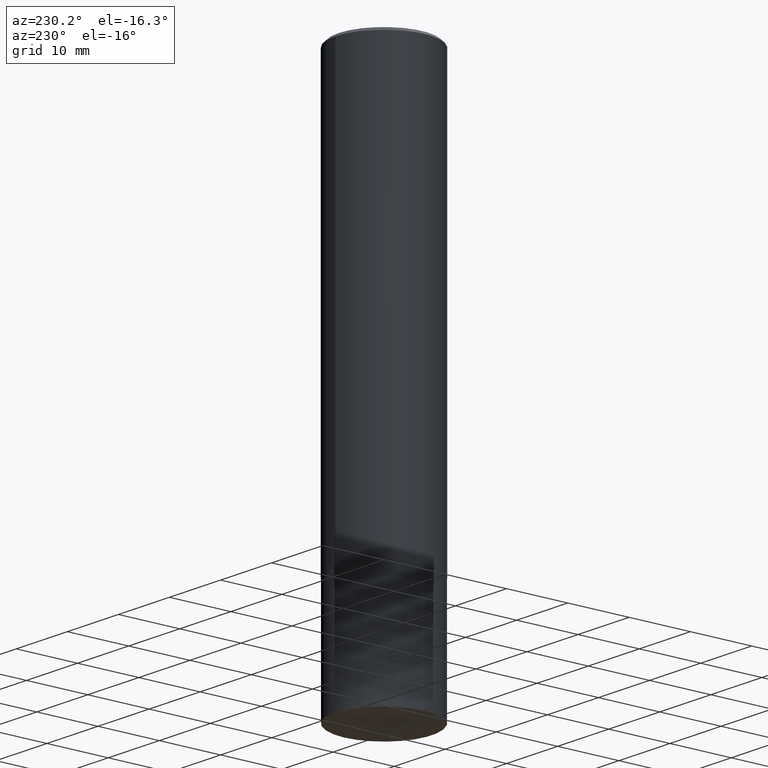
[diagram: clean part render]
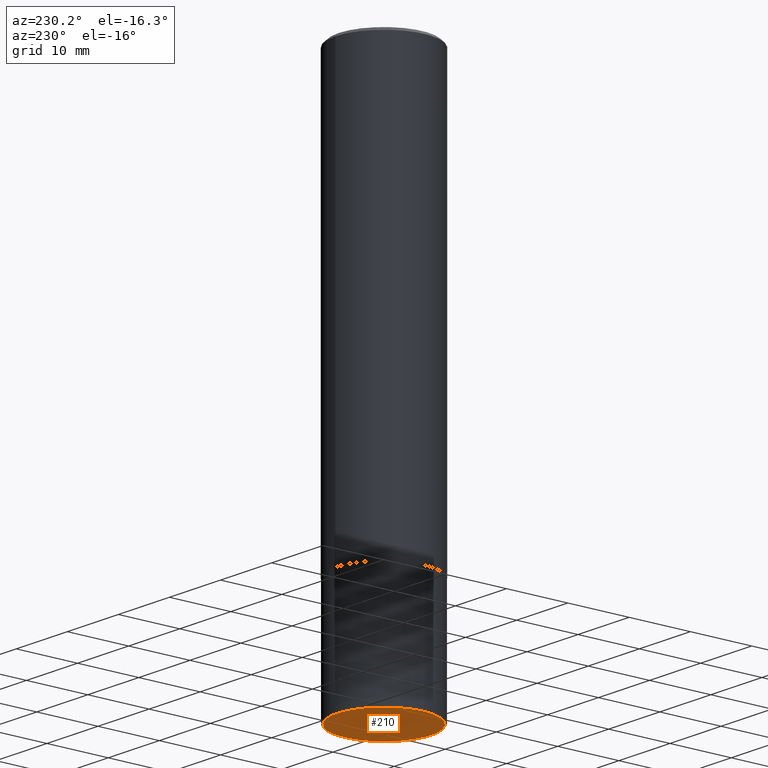
[diagram: same view with one face highlighted and labeled with its STEP entity id]
A machine part, auxiliary view. The second image highlights one B-rep face of the part: STEP entity #210.
In plain terms, the highlighted planar face has unit normal (0, -0, -1).
Its self-contained STEP definition (entity closure, byte-faithful):
#15 = EDGE_CURVE ( 'NONE', #374, #193, #53, .T. ) ;
#53 = CIRCLE ( 'NONE', #131, 0.3024999999999999911 ) ;
#58 = DIRECTION ( 'NONE',  ( 1.000000000000000000, -6.982962677686267499E-15, 0.000000000000000000 ) ) ;
#78 = EDGE_CURVE ( 'NONE', #193, #374, #155, .T. ) ;
#119 = CARTESIAN_POINT ( 'NONE',  ( 8.559140821647976968E-29, -1.222018468595100619E-14, -3.499999999999999112 ) ) ;
#131 = AXIS2_PLACEMENT_3D ( 'NONE', #119, #349, #182 ) ;
#132 = AXIS2_PLACEMENT_3D ( 'NONE', #154, #228, #58 ) ;
#154 = CARTESIAN_POINT ( 'NONE',  ( 8.559140821647976968E-29, -1.222018468595100619E-14, -3.499999999999999112 ) ) ;
#155 = CIRCLE ( 'NONE', #132, 0.3024999999999999911 ) ;
#182 = DIRECTION ( 'NONE',  ( 1.000000000000000000, -6.982962677686267499E-15, 0.000000000000000000 ) ) ;
#185 = PLANE ( 'NONE',  #250 ) ;
#193 = VERTEX_POINT ( 'NONE', #315 ) ;
#210 = ADVANCED_FACE ( 'NONE', ( #249 ), #185, .T. ) ;
#228 = DIRECTION ( 'NONE',  ( -2.445468806185136597E-29, 3.491481338843145583E-15, 1.000000000000000000 ) ) ;
#239 = DIRECTION ( 'NONE',  ( 2.438088387897960049E-29, -3.491481338843145188E-15, -1.000000000000000000 ) ) ;
#249 = FACE_OUTER_BOUND ( 'NONE', #377, .T. ) ;
#250 = AXIS2_PLACEMENT_3D ( 'NONE', #383, #239, #367 ) ;
#315 = CARTESIAN_POINT ( 'NONE',  ( -0.3024999999999999911, -1.001780836679448390E-14, -3.499999999999999112 ) ) ;
#323 = ORIENTED_EDGE ( 'NONE', *, *, #15, .F. ) ;
#341 = CARTESIAN_POINT ( 'NONE',  ( 0.3024999999999999911, -1.433253089595110124E-14, -3.499999999999999112 ) ) ;
#349 = DIRECTION ( 'NONE',  ( -2.445468806185136597E-29, 3.491481338843145583E-15, 1.000000000000000000 ) ) ;
#367 = DIRECTION ( 'NONE',  ( -1.000000000000000000, 6.982962677686265922E-15, -4.876176775795935793E-29 ) ) ;
#371 = ORIENTED_EDGE ( 'NONE', *, *, #78, .F. ) ;
#374 = VERTEX_POINT ( 'NONE', #341 ) ;
#377 = EDGE_LOOP ( 'NONE', ( #323, #371 ) ) ;
#383 = CARTESIAN_POINT ( 'NONE',  ( 1.297351265854343644E-28, -5.898552965075025237E-15, -3.499999999999999112 ) ) ;